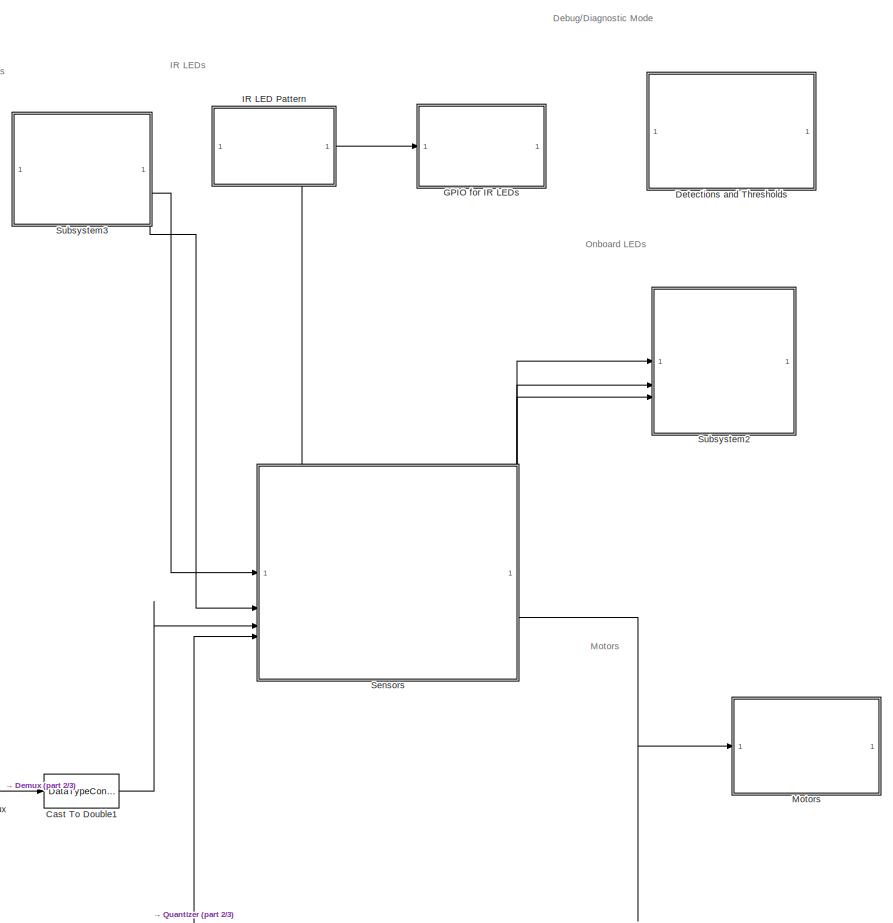
[diagram: root canvas - part 1/3, center side, full height]
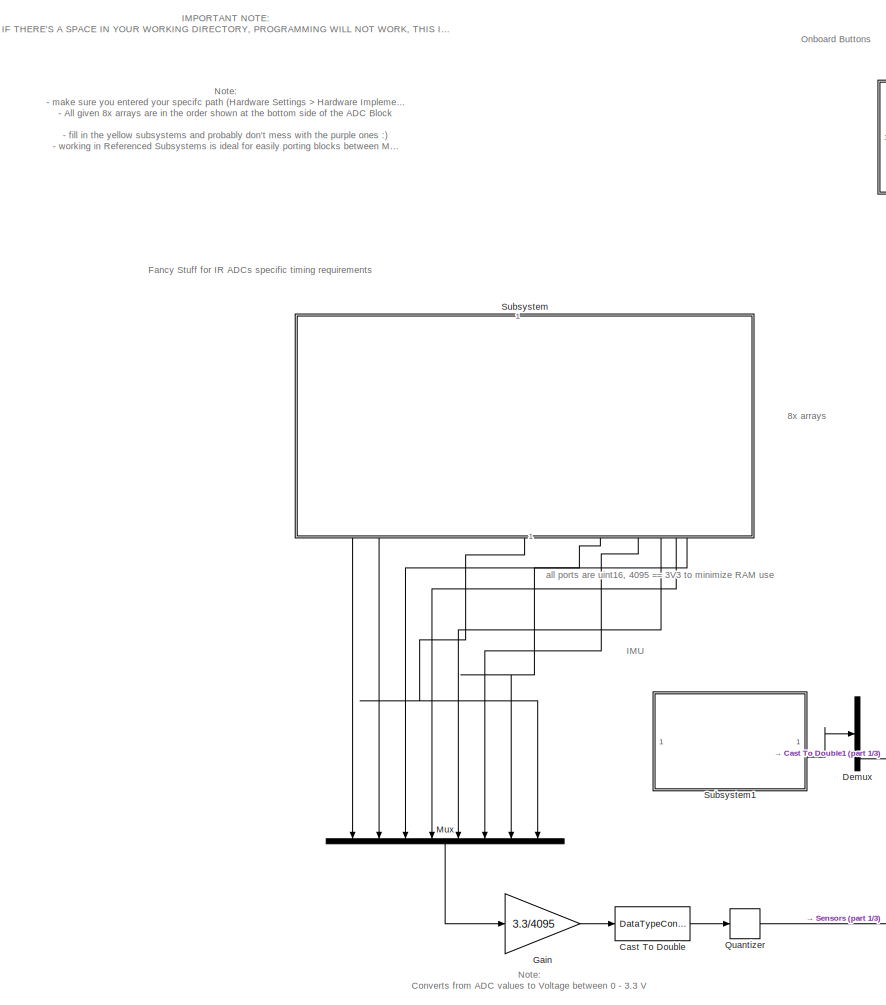
[diagram: root canvas - part 2/3, left side, full height]
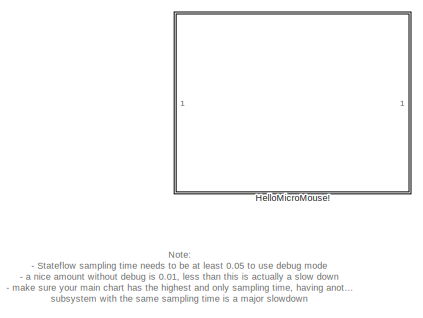
[diagram: root canvas - part 3/3, top right region]
MODEL slx_26e4e8ed4b0b
KIND model
CONFIG AbsTol = auto
CONFIG EnableMultiTasking = on
CONFIG FixedStep = auto
CONFIG MaxStep = auto
CONFIG MinStep = auto
CONFIG RelTol = 1e-3
CONFIG SampleTimeConstraint = Unconstrained
CONFIG SolverName = FixedStepAuto
CONFIG StartTime = 0.0
CONFIG StopTime = 2
BLOCK [DataTypeConversion] Cast To Double
  OutDataTypeStr = double
  RndMeth = Floor
  SaturateOnIntegerOverflow = off
BLOCK [DataTypeConversion] Cast To Double1
  OutDataTypeStr = double
  RndMeth = Floor
  SaturateOnIntegerOverflow = off
BLOCK [Demux] Demux
  Outputs = 3
BLOCK [SubSystem] Detections and Thresholds
  ReferencedSubsystem = DiagnosticMode
BLOCK [SubSystem] GPIO for IR LEDs
  ReferencedSubsystem = IR_LEDs
  SystemSampleTime = samplingTime
  TreatAsAtomicUnit = on
BLOCK [Gain] Gain
  Gain = 3.3/4095
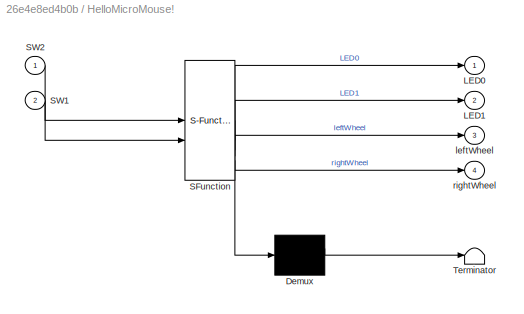
BLOCK [SubSystem] HelloMicroMouse!
  Commented = on
  ErrorFcn = Stateflow.Translate.translate
  PermitHierarchicalResolution = ExplicitOnly
  PortSchema = {"entries":[{"content":{"sides":[{"content":{"connectorIds":["In1","In2"]},"type":"ConnectorPlacement.EquallySpacedRectSide","uuid":"f52daa4f-6374-42e5-9ef1-0ccc99d09b58"},{"content":{"connectorIds":["Out1","Out2"],"side":"RIGHT"},"type":"ConnectorPlacement.EquallySpacedRectSide","uuid":"94b478cc-4dde-45c7-a588-77cf2b43cdb7"},{"content":{"side":"TOP"},"type":"ConnectorPlacement.EquallySpacedRectSi...<+392ch>
  SFBlockType = Chart
  TreatAsAtomicUnit = on
BLOCK [Demux] HelloMicroMouse!/ Demux 
  Outputs = 1
BLOCK [S-Function] HelloMicroMouse!/ SFunction 
  EnableBusSupport = on
  FunctionName = sf_sfun
  PortCounts = [2 5]
  SFcnIsStateOwnerBlock = off
  SFunctionDeploymentMode = off
  Tag = Stateflow S-Function 2
BLOCK [Terminator] HelloMicroMouse!/ Terminator 
BLOCK [Outport] HelloMicroMouse!/LED0
BLOCK [Outport] HelloMicroMouse!/LED1
  Port = 2
BLOCK [Inport] HelloMicroMouse!/SW1
  Port = 2
BLOCK [Inport] HelloMicroMouse!/SW2
BLOCK [Outport] HelloMicroMouse!/leftWheel
  Port = 3
BLOCK [Outport] HelloMicroMouse!/rightWheel
  Port = 4
BLOCK [SubSystem] IR LED Pattern
  PortSchema = {"entries":[{"content":{"sides":[{"content":{},"type":"ConnectorPlacement.EquallySpacedRectSide","uuid":"7c8d8a80-aae0-409b-9cb9-b3b86d39018b"},{"content":{"connectorIds":["Out1"],"side":"RIGHT"},"type":"ConnectorPlacement.EquallySpacedRectSide","uuid":"c87144cc-2119-421f-99f2-b7a3c226c36e"},{"content":{"side":"TOP"},"type":"ConnectorPlacement.EquallySpacedRectSide","uuid":"a76ebbaf-a86a-4c95-ac8a...<+349ch>
  ReferencedSubsystem = IR_LED_Pattern
BLOCK [SubSystem] Motors
  ReferencedSubsystem = Motors
BLOCK [Mux] Mux
  DisplayOption = bar
  Inputs = 8
  NameLocation = left
BLOCK [Quantizer] Quantizer
  QuantizationInterval = 0.01
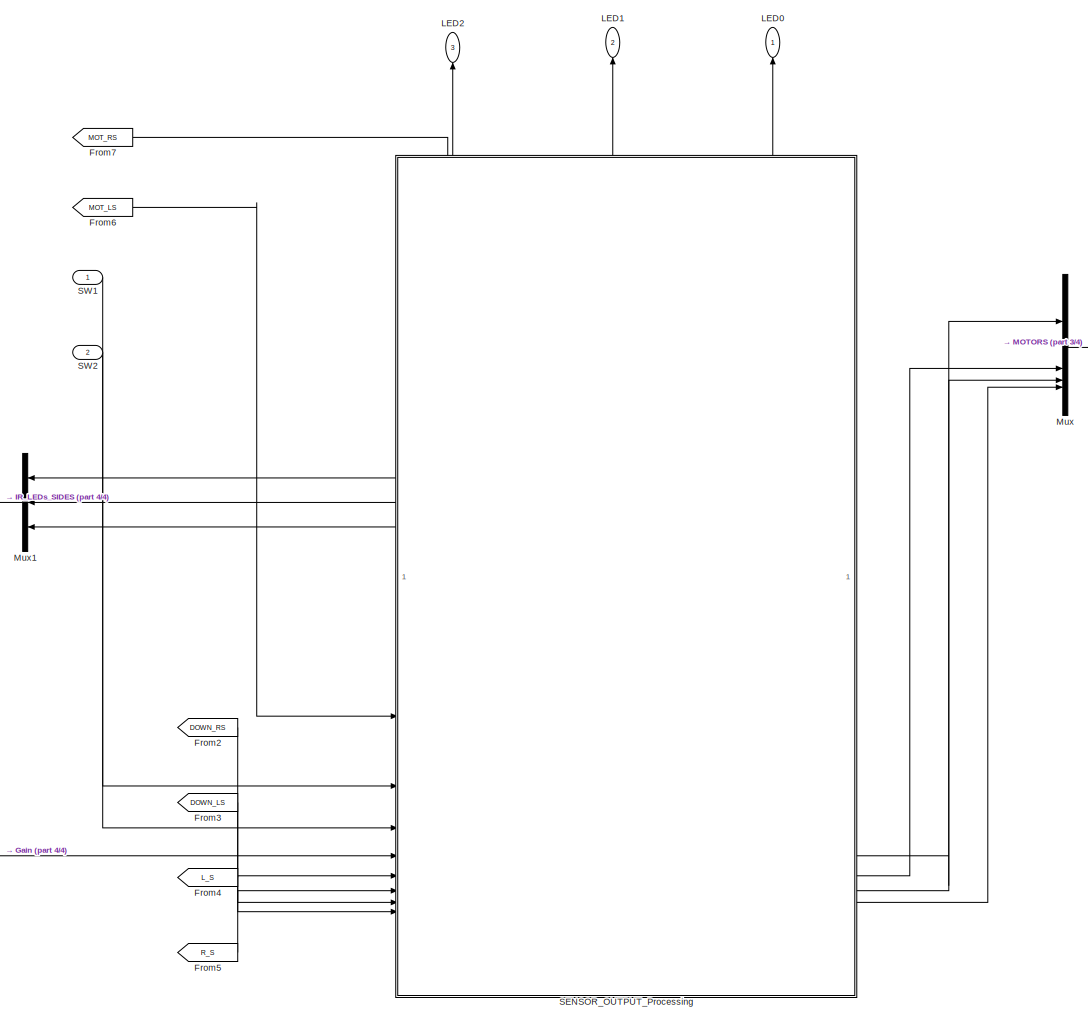
[diagram: Sensors - part 1/4, right side, full height]
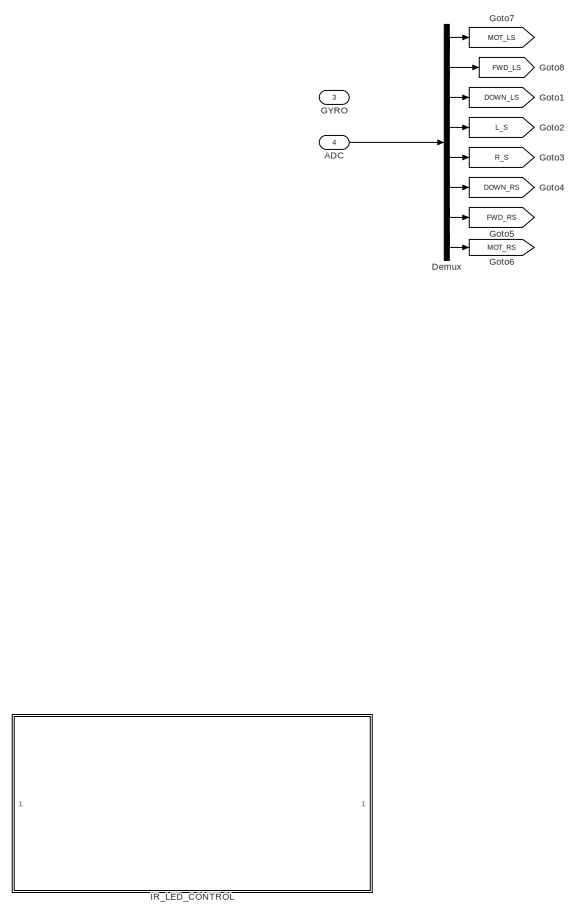
[diagram: Sensors - part 2/4, left side, full height]
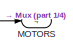
[diagram: Sensors - part 3/4, middle right region]
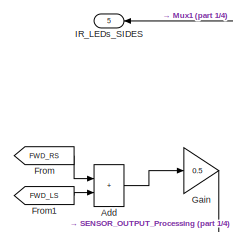
[diagram: Sensors - part 4/4, central region]
BLOCK [SubSystem] Sensors
  PortSchema = {"entries":[{"content":{"sides":[{"content":{"connectorIds":["In1","In2","In3","In4"]},"type":"ConnectorPlacement.EquallySpacedRectSide","uuid":"bc6db5eb-46dc-4f8e-8cde-60f150010aca"},{"content":{"side":"RIGHT"},"type":"ConnectorPlacement.EquallySpacedRectSide","uuid":"e71d750a-c6fe-4d02-b611-1eb45a9e699c"},{"content":{"connectorIds":["Out1","Out2","Out3","Out4","Out5"],"side":"TOP"},"type":"Conne...<+394ch>
BLOCK [Inport] Sensors/ADC
  Port = 4
BLOCK [Sum] Sensors/Add
  IconShape = rectangular
BLOCK [Demux] Sensors/Demux
  Outputs = 8
BLOCK [From] Sensors/From
  GotoTag = FWD_RS
BLOCK [From] Sensors/From1
  GotoTag = FWD_LS
BLOCK [From] Sensors/From2
  GotoTag = DOWN_RS
BLOCK [From] Sensors/From3
  GotoTag = DOWN_LS
BLOCK [From] Sensors/From4
  GotoTag = L_S
BLOCK [From] Sensors/From5
  GotoTag = R_S
BLOCK [From] Sensors/From6
  GotoTag = MOT_LS
BLOCK [From] Sensors/From7
  GotoTag = MOT_RS
BLOCK [Inport] Sensors/GYRO
  Port = 3
BLOCK [Gain] Sensors/Gain
  Gain = 0.5
BLOCK [Goto] Sensors/Goto1
  GotoTag = DOWN_LS
BLOCK [Goto] Sensors/Goto2
  GotoTag = L_S
BLOCK [Goto] Sensors/Goto3
  GotoTag = R_S
BLOCK [Goto] Sensors/Goto4
  GotoTag = DOWN_RS
BLOCK [Goto] Sensors/Goto5
  GotoTag = FWD_RS
BLOCK [Goto] Sensors/Goto6
  GotoTag = MOT_RS
BLOCK [Goto] Sensors/Goto7
  GotoTag = MOT_LS
BLOCK [Goto] Sensors/Goto8
  GotoTag = FWD_LS
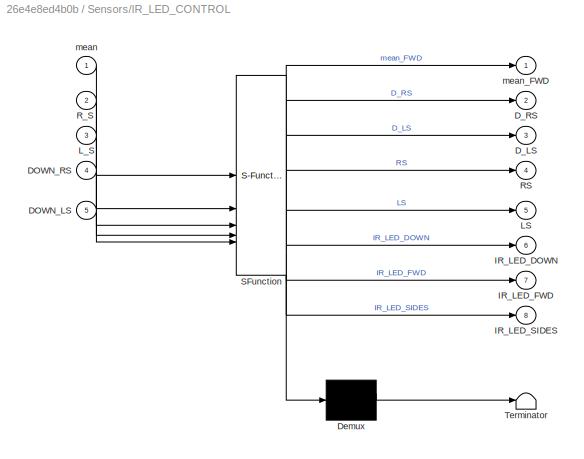
BLOCK [SubSystem] Sensors/IR_LED_CONTROL
  Commented = on
  ErrorFcn = Stateflow.Translate.translate
  PermitHierarchicalResolution = ExplicitOnly
  PortSchema = {"entries":[{"content":{"sides":[{"content":{"connectorIds":["In2","In3","In5","In4"]},"type":"ConnectorPlacement.EquallySpacedRectSide","uuid":"6ddea5f0-ded9-4726-b8e4-d6f2d38f9761"},{"content":{"connectorIds":["Out1","Out2","In1","Out3","Out4","Out5"],"side":"RIGHT"},"type":"ConnectorPlacement.EquallySpacedRectSide","uuid":"6b06b77d-6c18-44e2-b7ed-08393e6b8e65"},{"content":{"connectorIds":["Out8...<+438ch>
  SFBlockType = Chart
  TreatAsAtomicUnit = on
BLOCK [Demux] Sensors/IR_LED_CONTROL/ Demux 
  Outputs = 1
BLOCK [S-Function] Sensors/IR_LED_CONTROL/ SFunction 
  EnableBusSupport = on
  FunctionName = sf_sfun
  PortCounts = [5 9]
  SFcnIsStateOwnerBlock = off
  SFunctionDeploymentMode = off
  Tag = Stateflow S-Function 4
BLOCK [Terminator] Sensors/IR_LED_CONTROL/ Terminator 
BLOCK [Inport] Sensors/IR_LED_CONTROL/DOWN_LS
  Port = 5
BLOCK [Inport] Sensors/IR_LED_CONTROL/DOWN_RS
  Port = 4
BLOCK [Outport] Sensors/IR_LED_CONTROL/D_LS
  Port = 3
BLOCK [Outport] Sensors/IR_LED_CONTROL/D_RS
  Port = 2
BLOCK [Outport] Sensors/IR_LED_CONTROL/IR_LED_DOWN
  Port = 6
BLOCK [Outport] Sensors/IR_LED_CONTROL/IR_LED_FWD
  Port = 7
BLOCK [Outport] Sensors/IR_LED_CONTROL/IR_LED_SIDES
  Port = 8
BLOCK [Outport] Sensors/IR_LED_CONTROL/LS
  Port = 5
BLOCK [Inport] Sensors/IR_LED_CONTROL/L_S
  Port = 3
BLOCK [Outport] Sensors/IR_LED_CONTROL/RS
  Port = 4
BLOCK [Inport] Sensors/IR_LED_CONTROL/R_S
  Port = 2
BLOCK [Inport] Sensors/IR_LED_CONTROL/mean
BLOCK [Outport] Sensors/IR_LED_CONTROL/mean_FWD
BLOCK [Outport] Sensors/IR_LEDs_SIDES
  NameLocation = top
  Port = 5
BLOCK [Outport] Sensors/LED0
  NameLocation = right
BLOCK [Outport] Sensors/LED1
  NameLocation = right
  Port = 2
BLOCK [Outport] Sensors/LED2
  NameLocation = right
  Port = 3
BLOCK [Outport] Sensors/MOTORS
  Port = 4
BLOCK [Mux] Sensors/Mux
  DisplayOption = bar
BLOCK [Mux] Sensors/Mux1
  DisplayOption = bar
  Inputs = 3
  NameLocation = top
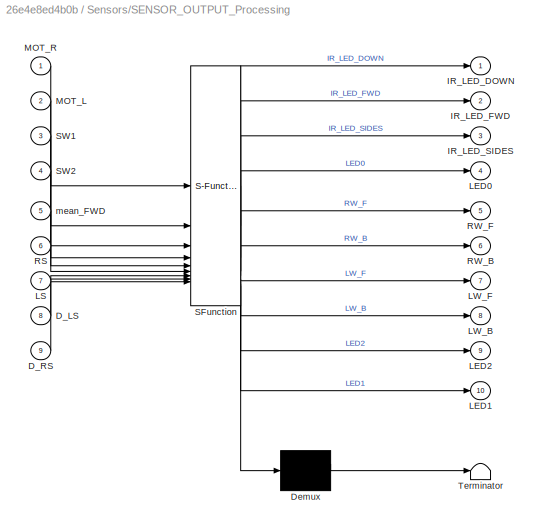
BLOCK [SubSystem] Sensors/SENSOR_OUTPUT_Processing
  ErrorFcn = Stateflow.Translate.translate
  PermitHierarchicalResolution = ExplicitOnly
  PortSchema = {"entries":[{"content":{"sides":[{"content":{"connectorIds":["In2","In3","In4","Out3","Out2","Out1","In5","In9","In8","In6","In7"]},"type":"ConnectorPlacement.EquallySpacedRectSide","uuid":"a9fa26fe-b8b4-44a7-ba43-f236deb27886"},{"content":{"connectorIds":["Out5","Out6","Out7","Out8"],"side":"RIGHT"},"type":"ConnectorPlacement.EquallySpacedRectSide","uuid":"821e32f5-16df-4623-bfe7-25c75d2fd732"},{...<+351ch>
  SFBlockType = Chart
  TreatAsAtomicUnit = on
BLOCK [Demux] Sensors/SENSOR_OUTPUT_Processing/ Demux 
  Outputs = 1
BLOCK [S-Function] Sensors/SENSOR_OUTPUT_Processing/ SFunction 
  EnableBusSupport = on
  FunctionName = sf_sfun
  PortCounts = [9 11]
  SFcnIsStateOwnerBlock = off
  SFunctionDeploymentMode = off
  Tag = Stateflow S-Function 3
BLOCK [Terminator] Sensors/SENSOR_OUTPUT_Processing/ Terminator 
BLOCK [Inport] Sensors/SENSOR_OUTPUT_Processing/D_LS
  Port = 8
BLOCK [Inport] Sensors/SENSOR_OUTPUT_Processing/D_RS
  Port = 9
BLOCK [Outport] Sensors/SENSOR_OUTPUT_Processing/IR_LED_DOWN
BLOCK [Outport] Sensors/SENSOR_OUTPUT_Processing/IR_LED_FWD
  Port = 2
BLOCK [Outport] Sensors/SENSOR_OUTPUT_Processing/IR_LED_SIDES
  Port = 3
BLOCK [Outport] Sensors/SENSOR_OUTPUT_Processing/LED0
  Port = 4
BLOCK [Outport] Sensors/SENSOR_OUTPUT_Processing/LED1
  Port = 10
BLOCK [Outport] Sensors/SENSOR_OUTPUT_Processing/LED2
  Port = 9
BLOCK [Inport] Sensors/SENSOR_OUTPUT_Processing/LS
  Port = 7
BLOCK [Outport] Sensors/SENSOR_OUTPUT_Processing/LW_B
  Port = 8
BLOCK [Outport] Sensors/SENSOR_OUTPUT_Processing/LW_F
  Port = 7
BLOCK [Inport] Sensors/SENSOR_OUTPUT_Processing/MOT_L
  Port = 2
BLOCK [Inport] Sensors/SENSOR_OUTPUT_Processing/MOT_R
BLOCK [Inport] Sensors/SENSOR_OUTPUT_Processing/RS
  Port = 6
BLOCK [Outport] Sensors/SENSOR_OUTPUT_Processing/RW_B
  Port = 6
BLOCK [Outport] Sensors/SENSOR_OUTPUT_Processing/RW_F
  Port = 5
BLOCK [Inport] Sensors/SENSOR_OUTPUT_Processing/SW1
  Port = 3
BLOCK [Inport] Sensors/SENSOR_OUTPUT_Processing/SW2
  Port = 4
BLOCK [Inport] Sensors/SENSOR_OUTPUT_Processing/mean_FWD
  Port = 5
BLOCK [Inport] Sensors/SW1
BLOCK [Inport] Sensors/SW2
  Port = 2
BLOCK [SubSystem] Subsystem
  PortSchema = {"entries":[{"content":{"sides":[{"content":{},"type":"ConnectorPlacement.EquallySpacedRectSide","uuid":"be6b81d5-7a49-4e34-b35f-0c07892094fc"},{"content":{"connectorIds":["Out1","Out2","Out3","Out4","Out5","Out6","Out7","Out8"],"side":"RIGHT"},"type":"ConnectorPlacement.EquallySpacedRectSide","uuid":"5e22590a-b7c0-4c63-8de4-8d81fd6c3849"},{"content":{"connectorIds":["Out12","Out10","Out11"],"side...<+440ch>
  ReferencedSubsystem = ADC_Block
BLOCK [SubSystem] Subsystem1
  ReferencedSubsystem = IMU
BLOCK [SubSystem] Subsystem2
  ReferencedSubsystem = LEDs
BLOCK [SubSystem] Subsystem3
  PortSchema = {"entries":[{"content":{"sides":[{"content":{},"type":"ConnectorPlacement.EquallySpacedRectSide","uuid":"e28eebbe-b7f2-4b36-b777-f04b3fc0ab34"},{"content":{"side":"RIGHT"},"type":"ConnectorPlacement.EquallySpacedRectSide","uuid":"8c3fa4f5-1e6a-4f41-8e39-119bdbcbe036"},{"content":{"side":"TOP"},"type":"ConnectorPlacement.EquallySpacedRectSide","uuid":"44ec265b-fcc9-41a2-b2aa-224ec14b1e13"},{"conten...<+333ch>
  ReferencedSubsystem = SWs
ANNOTATION (root): 8x arrays
ANNOTATION (root): IMPORTANT NOTE: IF THERE'S A SPACE IN YOUR WORKING DIRECTORY, PROGRAMMING WILL NOT WORK, THIS INCLUDES A SPACE IN YOUR PC's USERNAME (Space is an argument delimiter for terminal things)
ANNOTATION (root): Note: Converts from ADC values to Voltage between 0 - 3.3 V
ANNOTATION (root): Note: - Stateflow sampling time needs to be at least 0.05 to use debug mode - a nice amount without debug is 0.01, less than this is actually a slow down - make sure your main chart has the highest and only sampling time, having another subsystem with the same sampling time is a major slowdown
ANNOTATION (root): Debug/Diagnostic Mode
ANNOTATION (root): Fancy Stuff for IR ADCs specific timing requirements
ANNOTATION (root): IMU
ANNOTATION (root): IR LEDs
ANNOTATION (root): Motors
ANNOTATION (root): Note: - make sure you entered your specifc path (Hardware Settings > Hardware Implementation) to the given MicroMouseProgramming.ioc - All given 8x arrays are in the order shown at the bottom side of the ADC Block - fill in the yellow subsystems and probably don't mess with the purple ones :) - working in Referenced Subsystems is ideal for easily porting blocks between MATLAB instances, and openin...<+127ch>
ANNOTATION (root): Onboard Buttons
ANNOTATION (root): Onboard LEDs
ANNOTATION (root): all ports are uint16, 4095 == 3V3 to minimize RAM use
LINE Cast To Double1:1 -> Sensors:3
LINE Cast To Double:1 -> Quantizer:1
LINE Demux:3 -> Cast To Double1:1
LINE Gain:1 -> Cast To Double:1
LINE IR LED Pattern:1 -> GPIO for IR LEDs:1
LINE Mux:1 -> Gain:1
LINE Quantizer:1 -> Sensors:4
LINE Sensors/ADC:1 -> Sensors/Demux:1
LINE Sensors/Add:1 -> Sensors/Gain:1
LINE Sensors/Demux:1 -> Sensors/Goto7:1
LINE Sensors/Demux:2 -> Sensors/Goto8:1
LINE Sensors/Demux:3 -> Sensors/Goto1:1
LINE Sensors/Demux:4 -> Sensors/Goto2:1
LINE Sensors/Demux:5 -> Sensors/Goto3:1
LINE Sensors/Demux:6 -> Sensors/Goto4:1
LINE Sensors/Demux:7 -> Sensors/Goto5:1
LINE Sensors/Demux:8 -> Sensors/Goto6:1
LINE Sensors/From1:1 -> Sensors/Add:2
LINE Sensors/From2:1 -> Sensors/SENSOR_OUTPUT_Processing:9
LINE Sensors/From3:1 -> Sensors/SENSOR_OUTPUT_Processing:8
LINE Sensors/From4:1 -> Sensors/SENSOR_OUTPUT_Processing:6
LINE Sensors/From5:1 -> Sensors/SENSOR_OUTPUT_Processing:7
LINE Sensors/From6:1 -> Sensors/SENSOR_OUTPUT_Processing:2
LINE Sensors/From7:1 -> Sensors/SENSOR_OUTPUT_Processing:1
LINE Sensors/From:1 -> Sensors/Add:1
LINE Sensors/Gain:1 -> Sensors/SENSOR_OUTPUT_Processing:5
LINE Sensors/Mux1:1 -> Sensors/IR_LEDs_SIDES:1
LINE Sensors/Mux:1 -> Sensors/MOTORS:1
LINE Sensors/SENSOR_OUTPUT_Processing:1 -> Sensors/Mux1:3
LINE Sensors/SENSOR_OUTPUT_Processing:10 -> Sensors/LED1:1
LINE Sensors/SENSOR_OUTPUT_Processing:2 -> Sensors/Mux1:2
LINE Sensors/SENSOR_OUTPUT_Processing:3 -> Sensors/Mux1:1
LINE Sensors/SENSOR_OUTPUT_Processing:4 -> Sensors/LED0:1
LINE Sensors/SENSOR_OUTPUT_Processing:5 -> Sensors/Mux:1
LINE Sensors/SENSOR_OUTPUT_Processing:6 -> Sensors/Mux:2
LINE Sensors/SENSOR_OUTPUT_Processing:7 -> Sensors/Mux:3
LINE Sensors/SENSOR_OUTPUT_Processing:8 -> Sensors/Mux:4
LINE Sensors/SENSOR_OUTPUT_Processing:9 -> Sensors/LED2:1
LINE Sensors/SW1:1 -> Sensors/SENSOR_OUTPUT_Processing:3
LINE Sensors/SW2:1 -> Sensors/SENSOR_OUTPUT_Processing:4
LINE Sensors:1 -> Subsystem2:1
LINE Sensors:2 -> Subsystem2:2
LINE Sensors:3 -> Subsystem2:3
LINE Sensors:4 -> Motors:1
LINE Sensors:5 -> IR LED Pattern:1
LINE Subsystem1:2 -> Demux:1
LINE Subsystem3:1 -> Sensors:1
LINE Subsystem3:2 -> Sensors:2
LINE Subsystem:1 -> Mux:8
LINE Subsystem:2 -> Mux:7
LINE Subsystem:3 -> Mux:6
LINE Subsystem:4 -> Mux:5
LINE Subsystem:5 -> Mux:4
LINE Subsystem:6 -> Mux:3
LINE Subsystem:7 -> Mux:2
LINE Subsystem:8 -> Mux:1
CHART HelloMicroMouse! states=5 transitions=6
  STATE_LABEL 'ButtonPressed\nentry:\nLED0 = true;\nLED1 = true;\n'
  STATE_LABEL 'Right\nentry:\nleftWheel = 80;\nrightWheel = 80;'
  STATE_LABEL 'Left\nentry:\nleftWheel = 80;\nrightWheel = 80;'
  STATE_LABEL 'after(0.5,sec)'
  STATE_LABEL 'after(0.5,sec)'
  STATE_LABEL 'Right\nentry:\nleftWheel = 80;\nrightWheel = 80;'
  STATE_LABEL 'Left\nentry:\nleftWheel = 80;\nrightWheel = 80;'
  STATE_LABEL 'Stop\nentry:\nLED0 = false;\nLED1 = false;\nleftWheel = 0;\nrightWheel = 0;'
  STATE_LABEL 'WaitUntilButtonPressed\nduring:\nLED0 = ~LED0;'
CHART Sensors/SENSOR_OUTPUT_Processing states=32 transitions=42
  STATE_LABEL 'ON_MODE\nentry:\n'
  STATE_LABEL 'Stop\nentry:\nLED0 = false;\nLW_F = 0;\nRW_F = 0;\nLW_B = 0;\nRW_B = 0;'
  STATE_LABEL 'U_Turn\nentry:\npath(i) = 4;\ni = i+1;\nGOAL_R = 0;\nGOAL_L = 0;\nduring:\nLED1 = ~LED1;\nRW_F = 90;\nLW_B = 90;\n'
  STATE_LABEL 'Line_Following\nentry:\nLED0 = false;\nLED1 = false;\nduring:\nerror = double(D_LS) - double(D_RS);\nerror = error*100/3.3;\nLW_F = 79.5 - error*0.29;\nRW_F = 80 +error*0.29;\n'
  STATE_LABEL 'CalibrateOTHER\nentry:\nIR_LED_FWD = 1;\nIR_LED_SIDES = 0;\nIR_LED_DOWN = 1;\nduring:\nFWD_Threshold = mean_FWD*0.75;\nDOWN_RS_Threshold = D_RS;\nDOWN_LS_Threshold = D_LS;\nexit:\nIR_LED_FWD = 0;\nIR_LED_SIDES = 0;\nIR_LED_DOWN = 1;'
  STATE_LABEL 'CalibrateSIDES\nentry:\nIR_LED_SIDES = 1;\nduring:\nLED0 = ~LED0;\nLED2 = ~LED2;\nRS_Threshold = RS*0.75;\nLS_Threshold = LS*0.7;\nexit:\nIR_LED_FWD = 1;\nIR_LED_SIDES = 0;\n'
  STATE_LABEL 'Initialise\nentry:\nIR_LED_DOWN = 1;\nIR_LED_FWD = 0;\nIR_LED_SIDES = 0;\nLED0 = false;\nLED1 = false;\nLED2 = false;\nGOAL_R = 0;\nGOAL_L = 0;\npath = zeros(1,500);\ni = 1;\n'
  STATE_LABEL 'Detect_Sides\nentry:\nIR_LED_SIDES = 1;\nduring:\nRIGHT_Wall = (RS > RS_Threshold);\nLEFT_Wall = (LS > LS_Threshold) ;\nexit:\nIR_LED_SIDES = 0;'
  STATE_LABEL 'IDLE\nentry:\nLW_F = 0;\nRW_F = 0;\nj = 1;\n'
  STATE_LABEL 'Intersection\nduring:\nerror = double(D_LS) - double(D_RS);\nerror = error*100/3.3;\nLW_F = 80 - error*0.29;\nRW_F = 80 +error*0.29;\nexit:;\nLW_F = 0;\nRW_F = 0;\n'
  STATE_LABEL 'Detect_FWD\nentry:\nIR_LED_FWD = 1;\nduring:\nFWD_Wall = (mean_FWD > FWD_Threshold);\nexit:\nIR_LED_FWD = 0;'
  STATE_LABEL 'TurnR\nentry:\npath(i) = 3;\ni = i+1;\nGOAL_R = GOAL_R +1;\nGOAL_L =0;\nduring:\nLED2 = ~LED2;\nRW_B = 90;\nLW_F = 90;'
  STATE_LABEL 'TurnL\nentry:\npath(i) = 2;\ni = i+1;\nGOAL_L = GOAL_L +1;\nGOAL_R = 0;\nduring:\nLED0 = ~LED0;\nRW_F = 90;\nLW_B = 90;'
  STATE_LABEL 'RUN_LineFollowing\nentry:\nduring:\nerror = double(D_LS) - double(D_RS);\nerror = error*100/3.3;\nLW_F = 82.5 - error*0.17;\nRW_F = 83 +error*0.17;'
  STATE_LABEL 'No_Turn\nentry:\npath(i) = 1;\ni = i+1;\nGOAL_R = 0;\nGOAL_L = 0;\n'
  STATE_LABEL 'U_TURN_CALIBRATION\nentry:\nduring:\nLED1 = ~LED1;\nRW_F = 90;\nLW_B = 90;\nexit:\nLED1 = false;\nRW_F = 0;\nLW_B = 0'
  STATE_LABEL 'Test_sides\nFWD_Wall = (mean_FWD > FWD_Threshold);\nIR_LED_FWD = 0;\nIR_LED_SIDES = 1;\nduring:\nRIGHT_Wall = (RS > RS_Threshold);\nif RIGHT_Wall\n    LED2 = true;\nelse\n    LED2 = false;\nend\nLEFT_Wall = (LS > LS_Threshold) ;\nif LEFT_Wall\n    LED0 = true;\nelse\n    LED0 = false;\nend\nexit:\nIR_LED_FWD = 1;\nIR_LED_SIDES = 0'
  STATE_LABEL 'RUN_Intersection\nentry:\noption = path(j);\nj=j+1;\nduring:\nerror = double(D_LS) - double(D_RS);\nerror = error*100/3.3;\nLW_F = 83 - error*0.17;\nRW_F = 83 +error*0.17;\n'
  STATE_LABEL 'Correction\nduring:\nerror = double(D_LS) - double(D_RS);\nerror = error*100/3.3;\nLW_F = 79.5 - error*0.14;\nRW_F = 80 +error*0.14;'
  STATE_LABEL 'Return\nentry:\nLW_F = 0;\nRW_F = 0;\nLW_B = 0;\nRW_B = 0\nFINISH = (GOAL_R ==3) | (GOAL_L == 3);\nFWD_Wall=false;\nRIGHT_Wall =false;\nLEFT_Wall=false;\nLED0 = false;\nLED1 = false;\nLED2 = false;'
  STATE_LABEL 'RUN_Decide\nentry:\nLW_F = 0;\nRW_F = 0;\n'
  STATE_LABEL 'Test_FWD\nduring:\nFWD_Wall = (mean_FWD > FWD_Threshold);\nif FWD_Wall\n    LED1 = true;\nelse\n    LED1 = false;\nend'
  STATE_LABEL 'RUN_TurnL\nduring:\nLED0 = ~LED0;\nRW_F = 90;\nLW_B = 90;'
  STATE_LABEL 'RUN_U_Turn\nduring:\nLED1 = ~LED1;\nRW_F = 90;\nLW_B = 90;\n'
  STATE_LABEL 'RUN_TurnR\nduring:\nLED2 = ~LED2;\nRW_B = 90;\nLW_F = 90;'
  STATE_LABEL 'FINISH\nentry:\nLW_F = 0;\nRW_F = 0;\nLED0 = true;\nLED1 = false;\nLED2 = true;\nduring:\nLED0 = ~LED0;\nLED1 = ~LED1;\nLED2 = ~LED2;\nexit:\nLED0 = false;\nLED1 = false;\nLED2 = false;\n'
  STATE_LABEL 'Spin_L\nduring:\nRW_F = 90;\nLW_B = 90;\n'
  STATE_LABEL 'Spin_R\nduring:\nRW_B = 90;\nLW_F = 90;\nexit:\nRW_B = 0;\nLW_F = 0;\n'
  STATE_LABEL 'RUN_Done\nentry:\nRW_F = 0;\nLW_B = 0;\nLED0 = false;\nLED1 = false;\nLED2 = false;'
  STATE_LABEL 'RUN_Return\nentry:\nLW_F = 0;\nRW_F = 0;\nLW_B = 0;\nRW_B = 0\nLED0 = false;\nLED1 = false;\nLED2 = false;'
  STATE_LABEL 'RUN_Correction\nduring:\nerror = double(D_LS) - double(D_RS);\nerror = error*100/3.3;\nLW_F = 82.5 - error*0.07;\nRW_F = 83 +error*0.07;'
  STATE_LABEL '[SW1]'
  STATE_LABEL '[SW2]'
  STATE_LABEL 'after(0.2,sec)[RIGHT_Wall && LEFT_Wall]'
  STATE_LABEL '[SW1]'
  STATE_LABEL 'after(1.08,sec)'
  STATE_LABEL 'after(0.3,sec)'
  STATE_LABEL 'after(0.3,sec)'
  STATE_LABEL 'after(0.2,sec)[~RIGHT_Wall]'
  STATE_LABEL '[SW2 ]'
CHART Sensors/IR_LED_CONTROL states=3 transitions=4
  STATE_LABEL 'Catpture_mean_FWD\nentry:\nIR_LED_FWD = 1;\nduring:\nmean_FWD = mean;\nexit:\nIR_LED_FWD =0 ;\n'
  STATE_LABEL 'Capture_Sides\nentry:\nIR_LED_SIDES = 1;\nduring:\nRS = R_S;\nLS = L_S;\nexit:\nIR_LED_SIDES = 0;\n'
  STATE_LABEL 'Capture_down\nentry:\nIR_LED_DOWN = 1;\nduring:\nD_RS = DOWN_RS;\nD_LS = DOWN_LS;\n%MOT_L=MOT_LS;\n%MOT_R=MOT_RS;\nexit:\nIR_LED_DOWN = 0;\n'
CHART  states=0 transitions=0
CHART  states=0 transitions=0
CHART  states=0 transitions=0
